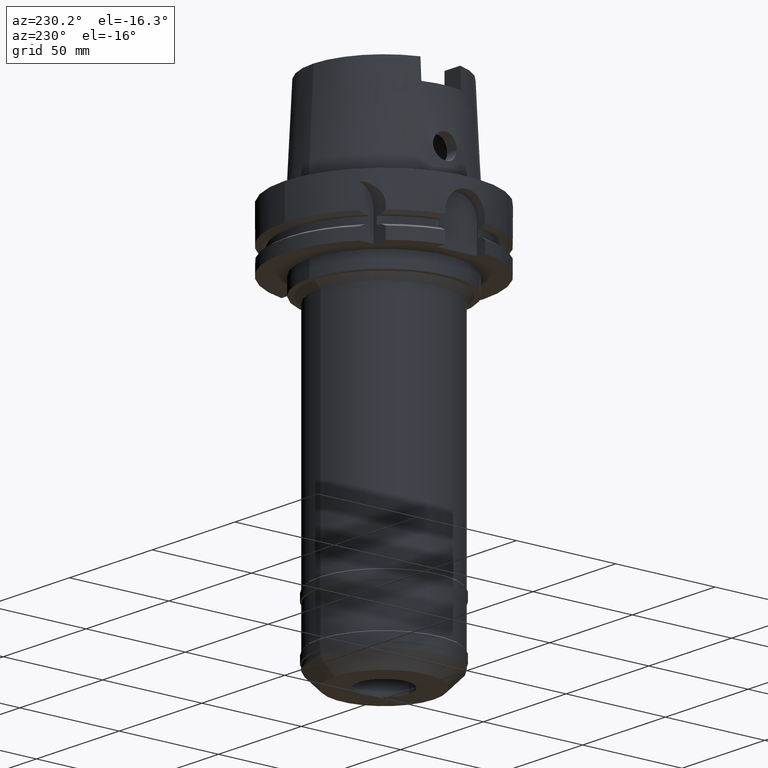
[diagram: clean part render]
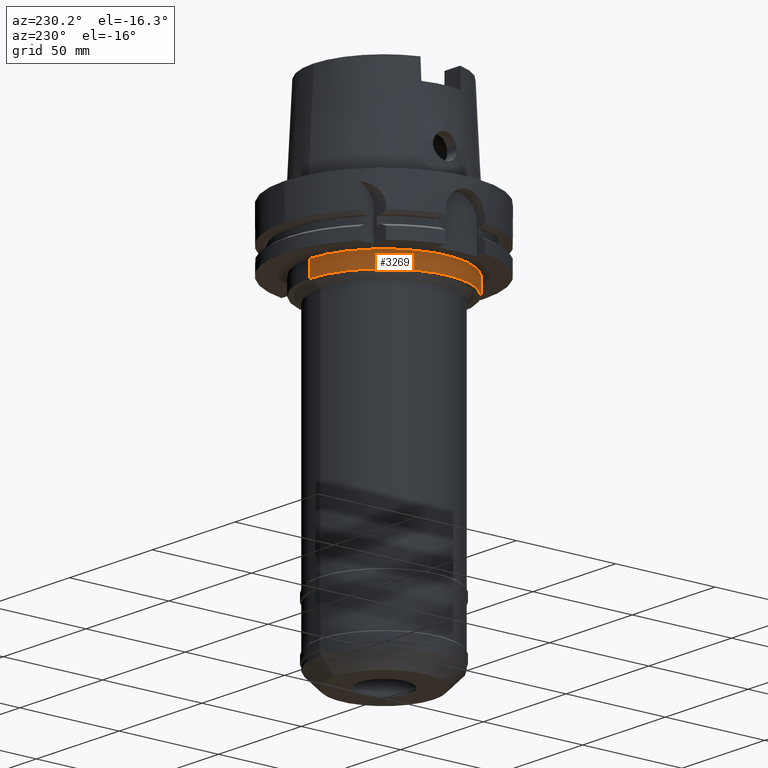
[diagram: same view with one face highlighted and labeled with its STEP entity id]
A machine part, auxiliary view. The second image highlights one B-rep face of the part: STEP entity #3269.
In plain terms, the highlighted cylindrical surface (partial cylindrical patch) has radius 37.5 mm, axis along (0, 0, 1).
Its self-contained STEP definition (entity closure, byte-faithful):
#521=CARTESIAN_POINT('',(0.E0,0.E0,-2.9E1));
#522=DIRECTION('',(0.E0,0.E0,-1.E0));
#523=DIRECTION('',(0.E0,-1.E0,0.E0));
#524=AXIS2_PLACEMENT_3D('',#521,#522,#523);
#1276=DIRECTION('',(0.E0,0.E0,-1.E0));
#1277=VECTOR('',#1276,8.E0);
#1278=CARTESIAN_POINT('',(0.E0,-3.75E1,-2.9E1));
#1279=LINE('',#1278,#1277);
#1283=DIRECTION('',(0.E0,0.E0,-1.E0));
#1284=VECTOR('',#1283,8.E0);
#1285=CARTESIAN_POINT('',(0.E0,3.75E1,-2.9E1));
#1286=LINE('',#1285,#1284);
#1298=CARTESIAN_POINT('',(0.E0,0.E0,-3.7E1));
#1299=DIRECTION('',(0.E0,0.E0,1.E0));
#1300=DIRECTION('',(0.E0,1.E0,0.E0));
#1301=AXIS2_PLACEMENT_3D('',#1298,#1299,#1300);
#2222=CARTESIAN_POINT('',(0.E0,-3.75E1,-2.9E1));
#2223=CARTESIAN_POINT('',(0.E0,3.75E1,-2.9E1));
#2224=VERTEX_POINT('',#2222);
#2225=VERTEX_POINT('',#2223);
#2226=CARTESIAN_POINT('',(0.E0,3.75E1,-3.7E1));
#2227=VERTEX_POINT('',#2226);
#2228=CARTESIAN_POINT('',(0.E0,-3.75E1,-3.7E1));
#2229=VERTEX_POINT('',#2228);
#3255=CARTESIAN_POINT('',(0.E0,0.E0,-2.0725E2));
#3256=DIRECTION('',(0.E0,0.E0,1.E0));
#3257=DIRECTION('',(0.E0,1.E0,0.E0));
#3258=AXIS2_PLACEMENT_3D('',#3255,#3256,#3257);
#3259=CYLINDRICAL_SURFACE('',#3258,3.75E1);
#3261=ORIENTED_EDGE('',*,*,#3260,.F.);
#3262=ORIENTED_EDGE('',*,*,#2735,.F.);
#3264=ORIENTED_EDGE('',*,*,#3263,.T.);
#3266=ORIENTED_EDGE('',*,*,#3265,.F.);
#3267=EDGE_LOOP('',(#3261,#3262,#3264,#3266));
#3268=FACE_OUTER_BOUND('',#3267,.F.);
#525=CIRCLE('',#524,3.75E1);
#1302=CIRCLE('',#1301,3.75E1);
#2735=EDGE_CURVE('',#2224,#2225,#525,.T.);
#3260=EDGE_CURVE('',#2225,#2227,#1286,.T.);
#3263=EDGE_CURVE('',#2224,#2229,#1279,.T.);
#3265=EDGE_CURVE('',#2227,#2229,#1302,.T.);
#3269=ADVANCED_FACE('',(#3268),#3259,.T.);